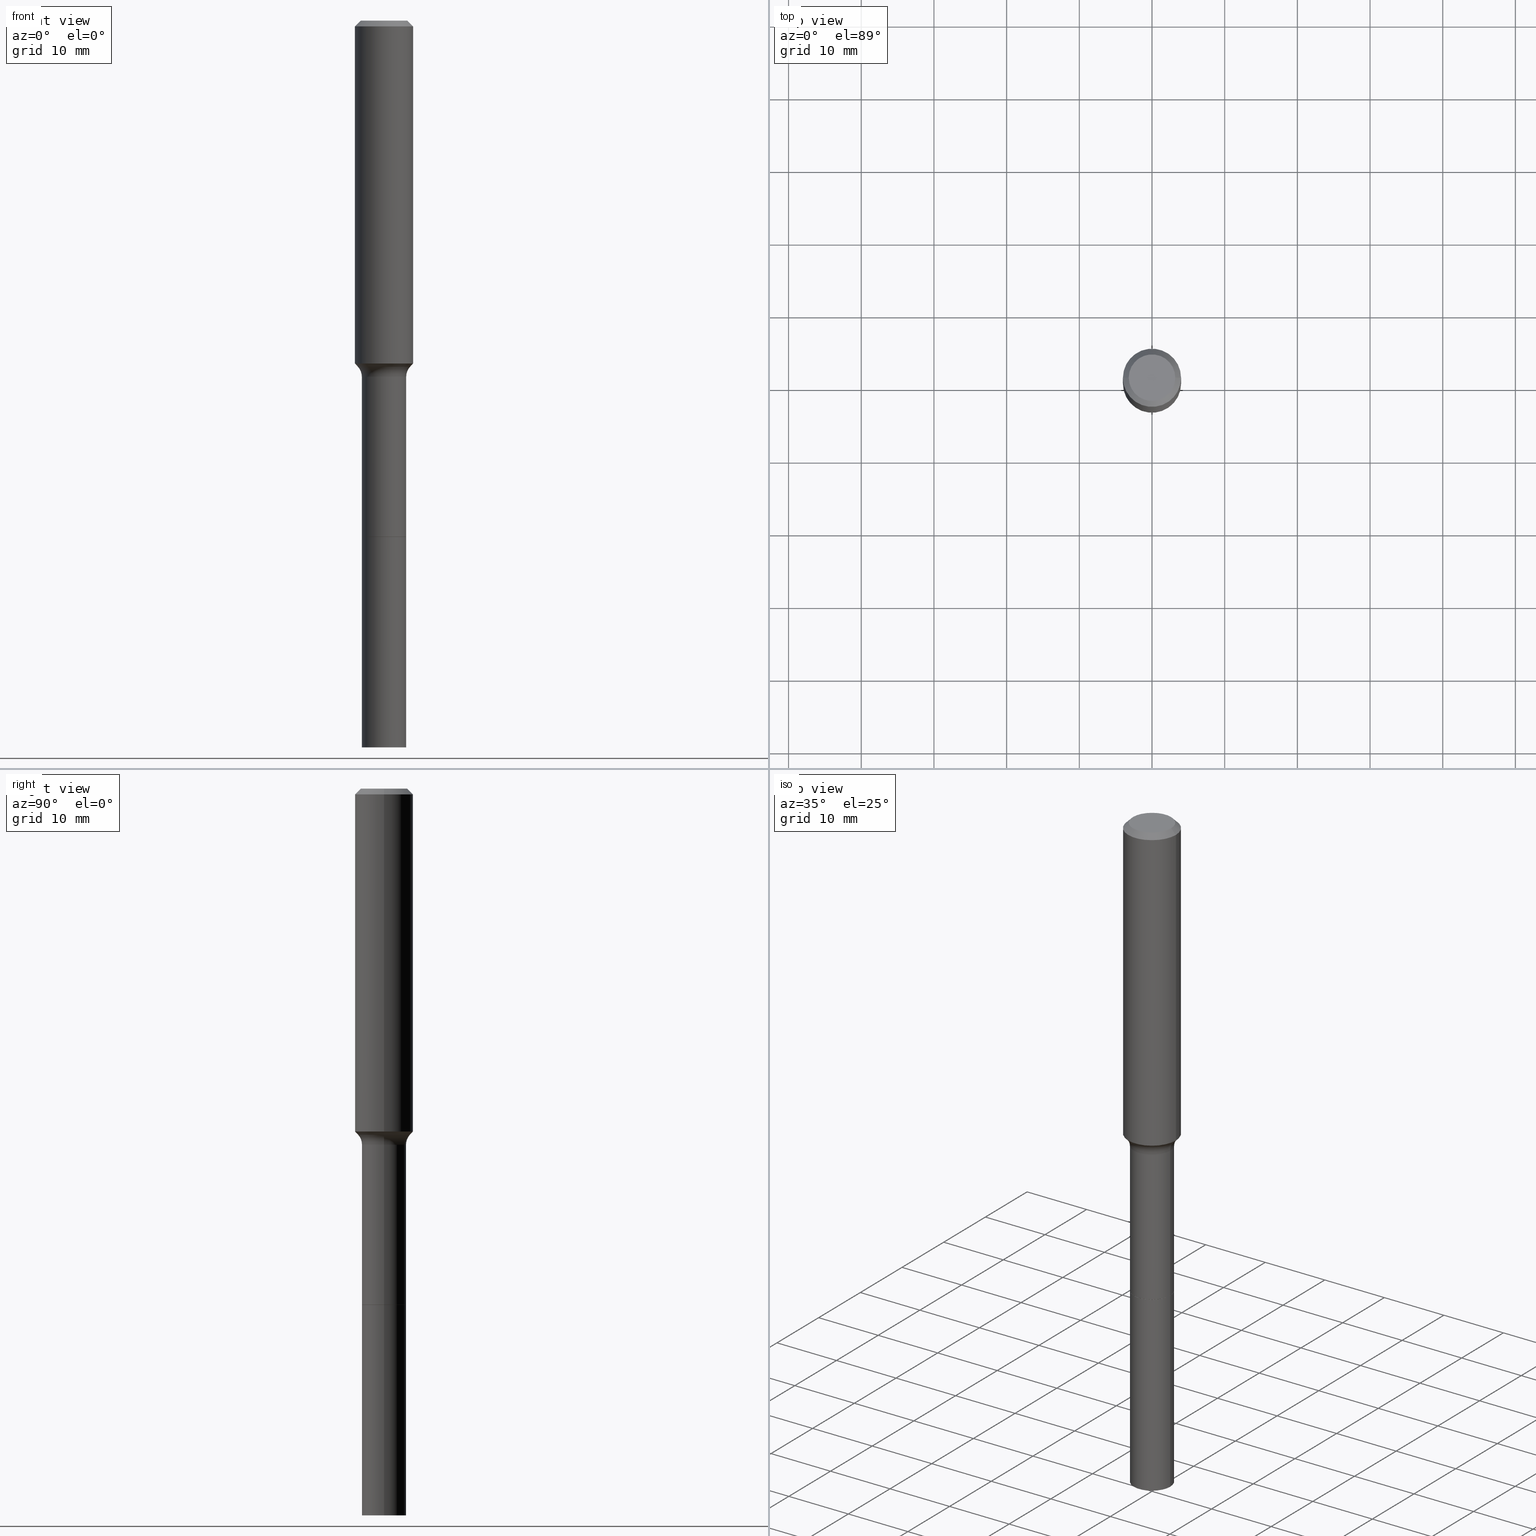
[diagram: canonical four-view strip — front | top / right | iso, engineering-drawing reading convention]
A machine part, canonical four-view strip (front | top / right | iso — engineering-drawing reading convention). The complete STEP part file that produces these views, byte-faithful:
ISO-10303-21;
HEADER;
FILE_DESCRIPTION (( 'STEP AP203' ),
    '1' );
FILE_NAME ('67847.STEP',
    '2025-04-01T15:31:27',
    ( '' ),
    ( '' ),
    'SwSTEP 2.0',
    'SolidWorks 2024',
    '' );
FILE_SCHEMA (( 'CONFIG_CONTROL_DESIGN' ));
ENDSEC;

DATA;
#1 = VERTEX_POINT ( 'NONE', #222 ) ;
#2 = EDGE_CURVE ( 'NONE', #437, #194, #307, .T. ) ;
#3 = VECTOR ( 'NONE', #514, 39.37007874015748143 ) ;
#4 = CARTESIAN_POINT ( 'NONE',  ( 6.835085313287456474E-29, -9.758690342066593069E-15, -2.794999999999999929 ) ) ;
#5 = ORIENTED_EDGE ( 'NONE', *, *, #94, .T. ) ;
#6 = UNCERTAINTY_MEASURE_WITH_UNIT (LENGTH_MEASURE( 1.000000000000000082E-05 ), #309, 'distance_accuracy_value', 'NONE');
#7 = CARTESIAN_POINT ( 'NONE',  ( 4.542166250519328115E-29, -6.485009606951724031E-15, -1.857380572195881374 ) ) ;
#8 = AXIS2_PLACEMENT_3D ( 'NONE', #330, #370, #167 ) ;
#9 = DIRECTION ( 'NONE',  ( -0.7071067811864509833, 7.493145998870005484E-15, 0.7071067811866440511 ) ) ;
#10 = FACE_OUTER_BOUND ( 'NONE', #125, .T. ) ;
#11 = FACE_OUTER_BOUND ( 'NONE', #122, .T. ) ;
#12 = CARTESIAN_POINT ( 'NONE',  ( 0.1200999999999999984, -1.458461584861558686E-14, -3.937000000000000277 ) ) ;
#13 = APPROVAL_PERSON_ORGANIZATION ( #506, #99, #231 ) ;
#14 = VERTEX_POINT ( 'NONE', #257 ) ;
#15 = ADVANCED_FACE ( 'NONE', ( #173 ), #373, .F. ) ;
#16 = COORDINATED_UNIVERSAL_TIME_OFFSET ( 5, 0, .BEHIND. ) ;
#17 = CARTESIAN_POINT ( 'NONE',  ( 6.833862578884363673E-29, -9.756944601397170777E-15, -2.794499999999999762 ) ) ;
#18 = FACE_OUTER_BOUND ( 'NONE', #283, .T. ) ;
#19 = APPROVAL ( #258, 'UNSPECIFIED' ) ;
#20 = CARTESIAN_POINT ( 'NONE',  ( -4.719860820353096954E-47, 6.738710358733626979E-33, 1.930043355456227940E-18 ) ) ;
#21 = DIRECTION ( 'NONE',  ( -2.445468806185136597E-29, 3.491481338843145583E-15, 1.000000000000000000 ) ) ;
#22 = DIRECTION ( 'NONE',  ( -2.445468806185136597E-29, 3.491481338843145583E-15, 1.000000000000000000 ) ) ;
#23 = AXIS2_PLACEMENT_3D ( 'NONE', #294, #456, #302 ) ;
#24 = DIRECTION ( 'NONE',  ( 1.000000000000000000, -6.982962677686265922E-15, 0.000000000000000000 ) ) ;
#25 = PERSON_AND_ORGANIZATION_ROLE ( 'design_owner' ) ;
#26 = EDGE_CURVE ( 'NONE', #340, #364, #407, .T. ) ;
#27 = CARTESIAN_POINT ( 'NONE',  ( 4.717309327131129576E-29, -6.735067502628428981E-15, -1.929000000000000270 ) ) ;
#28 = CALENDAR_DATE ( 2025, 1, 4 ) ;
#29 = VERTEX_POINT ( 'NONE', #136 ) ;
#30 = DIRECTION ( 'NONE',  ( -2.445468806185136597E-29, 3.491481338843145583E-15, 1.000000000000000000 ) ) ;
#31 = CALENDAR_DATE ( 2025, 1, 4 ) ;
#32 = TOROIDAL_SURFACE ( 'NONE', #323, 0.2000999999999998613, 0.08000000000000002942 ) ;
#33 = ORIENTED_EDGE ( 'NONE', *, *, #329, .F. ) ;
#34 = DIRECTION ( 'NONE',  ( 1.000000000000000000, -6.982962677686273810E-15, 0.000000000000000000 ) ) ;
#35 = LOCAL_TIME ( 11, 31, 27.00000000000000000, #193 ) ;
#36 = ADVANCED_FACE ( 'NONE', ( #183 ), #32, .F. ) ;
#37 = ORIENTED_EDGE ( 'NONE', *, *, #181, .T. ) ;
#38 = ORIENTED_EDGE ( 'NONE', *, *, #490, .F. ) ;
#39 = PRODUCT_DEFINITION_SHAPE ( 'NONE', 'NONE',  #197 ) ;
#40 = ORIENTED_EDGE ( 'NONE', *, *, #56, .T. ) ;
#41 = CIRCLE ( 'NONE', #59, 0.1195999999999999980 ) ;
#42 = AXIS2_PLACEMENT_3D ( 'NONE', #17, #497, #328 ) ;
#43 = AXIS2_PLACEMENT_3D ( 'NONE', #195, #357, #158 ) ;
#44 = FACE_OUTER_BOUND ( 'NONE', #266, .T. ) ;
#45 = ORIENTED_EDGE ( 'NONE', *, *, #372, .F. ) ;
#46 = EDGE_CURVE ( 'NONE', #364, #340, #212, .T. ) ;
#47 = AXIS2_PLACEMENT_3D ( 'NONE', #4, #89, #481 ) ;
#48 = DIRECTION ( 'NONE',  ( 1.000000000000000000, -6.982962677686265922E-15, 0.000000000000000000 ) ) ;
#49 = CARTESIAN_POINT ( 'NONE',  ( 4.717309327131129576E-29, -6.735067502628428981E-15, -1.929000000000000270 ) ) ;
#50 = ADVANCED_FACE ( 'NONE', ( #394 ), #518, .T. ) ;
#51 = AXIS2_PLACEMENT_3D ( 'NONE', #500, #133, #374 ) ;
#52 = FACE_OUTER_BOUND ( 'NONE', #318, .T. ) ;
#53 = CARTESIAN_POINT ( 'NONE',  ( 0.1195999999999999980, -1.059385267831786878E-14, -2.794999999999999929 ) ) ;
#54 = PERSON_AND_ORGANIZATION_ROLE ( 'classification_officer' ) ;
#55 = PLANE ( 'NONE',  #377 ) ;
#56 = EDGE_CURVE ( 'NONE', #487, #255, #41, .T. ) ;
#57 = ORIENTED_EDGE ( 'NONE', *, *, #2, .T. ) ;
#58 = DIRECTION ( 'NONE',  ( 1.000000000000000000, -6.982962677686265922E-15, 0.000000000000000000 ) ) ;
#59 = AXIS2_PLACEMENT_3D ( 'NONE', #109, #463, #347 ) ;
#60 = DIRECTION ( 'NONE',  ( 0.7071067811864509833, -2.468850131081245741E-15, 0.7071067811866440511 ) ) ;
#61 = CC_DESIGN_SECURITY_CLASSIFICATION ( #450, ( #363 ) ) ;
#62 = CIRCLE ( 'NONE', #228, 0.1415917038704659625 ) ;
#63 = CC_DESIGN_PERSON_AND_ORGANIZATION_ASSIGNMENT ( #308, #110, ( #363 ) ) ;
#64 = DIRECTION ( 'NONE',  ( -2.445468806185136597E-29, 3.491481338843145583E-15, 1.000000000000000000 ) ) ;
#65 = ADVANCED_FACE ( 'NONE', ( #141 ), #387, .T. ) ;
#66 = PLANE ( 'NONE',  #80 ) ;
#67 = EDGE_CURVE ( 'NONE', #1, #489, #214, .T. ) ;
#68 = DIRECTION ( 'NONE',  ( -2.445468806185136597E-29, 3.491481338843145583E-15, 1.000000000000000000 ) ) ;
#69 = CLOSED_SHELL ( 'NONE', ( #50, #169, #208, #65, #36, #430, #325, #15, #91, #333, #134, #485, #414, #152 ) ) ;
#70 = AXIS2_PLACEMENT_3D ( 'NONE', #20, #445, #279 ) ;
#71 = EDGE_LOOP ( 'NONE', ( #411, #400, #159, #448 ) ) ;
#72 = DIRECTION ( 'NONE',  ( 7.105427357601001859E-15, 1.000000000000000000, -3.491481338843145583E-15 ) ) ;
#73 = ORIENTED_EDGE ( 'NONE', *, *, #26, .F. ) ;
#74 = CYLINDRICAL_SURFACE ( 'NONE', #166, 0.1200999999999999984 ) ;
#75 = DATE_TIME_ROLE ( 'creation_date' ) ;
#76 = ORIENTED_EDGE ( 'NONE', *, *, #397, .T. ) ;
#77 = CARTESIAN_POINT ( 'NONE',  ( -0.1200999999999999984, -8.905328516418712067E-15, -2.794999999999999929 ) ) ;
#78 = ORIENTED_EDGE ( 'NONE', *, *, #79, .F. ) ;
#79 = EDGE_CURVE ( 'NONE', #29, #364, #101, .T. ) ;
#80 = AXIS2_PLACEMENT_3D ( 'NONE', #454, #90, #252 ) ;
#81 = ORIENTED_EDGE ( 'NONE', *, *, #376, .T. ) ;
#82 = AXIS2_PLACEMENT_3D ( 'NONE', #451, #30, #48 ) ;
#83 = ORIENTED_EDGE ( 'NONE', *, *, #249, .F. ) ;
#84 = CARTESIAN_POINT ( 'NONE',  ( 0.1575000000000001954, -7.584826228687311511E-15, -1.857380572195881374 ) ) ;
#85 = ORIENTED_EDGE ( 'NONE', *, *, #241, .F. ) ;
#86 = CIRCLE ( 'NONE', #331, 0.1260000000000000009 ) ;
#87 = MANIFOLD_SOLID_BREP ( 'Body-Move/Copy2[2]', #69 ) ;
#88 = CARTESIAN_POINT ( 'NONE',  ( 0.1195999999999999980, -1.059385267831786878E-14, -2.794999999999999929 ) ) ;
#89 = DIRECTION ( 'NONE',  ( -2.445468806185136597E-29, 3.491481338843145583E-15, 1.000000000000000000 ) ) ;
#90 = DIRECTION ( 'NONE',  ( 2.438088387897960049E-29, -3.491481338843145188E-15, -1.000000000000000000 ) ) ;
#91 = ADVANCED_FACE ( 'NONE', ( #18 ), #353, .T. ) ;
#92 = CYLINDRICAL_SURFACE ( 'NONE', #157, 0.1575000000000000844 ) ;
#93 = DESIGN_CONTEXT ( 'detailed design', #502, 'design' ) ;
#94 = EDGE_CURVE ( 'NONE', #1, #375, #114, .T. ) ;
#95 = FACE_OUTER_BOUND ( 'NONE', #271, .T. ) ;
#96 = ORIENTED_EDGE ( 'NONE', *, *, #503, .F. ) ;
#97 = CARTESIAN_POINT ( 'NONE',  ( 7.703226739483229599E-31, -1.099816621735597908E-16, -0.03150000000000020145 ) ) ;
#98 = DATE_AND_TIME ( #461, #132 ) ;
#99 = APPROVAL ( #386, 'UNSPECIFIED' ) ;
#100 = DIRECTION ( 'NONE',  ( 1.000000000000000000, -6.982962677686267499E-15, 4.876176775795936353E-29 ) ) ;
#101 = LINE ( 'NONE', #472, #147 ) ;
#102 = AXIS2_PLACEMENT_3D ( 'NONE', #97, #21, #58 ) ;
#103 = LINE ( 'NONE', #462, #227 ) ;
#104 = AXIS2_PLACEMENT_3D ( 'NONE', #138, #209, #168 ) ;
#105 = FACE_OUTER_BOUND ( 'NONE', #71, .T. ) ;
#106 = DATE_AND_TIME ( #31, #35 ) ;
#107 = DIRECTION ( 'NONE',  ( 1.000000000000000000, 0.000000000000000000, 0.000000000000000000 ) ) ;
#108 = VECTOR ( 'NONE', #128, 39.37007874015748143 ) ;
#109 = CARTESIAN_POINT ( 'NONE',  ( 6.835085313287456474E-29, -9.758690342066593069E-15, -2.794999999999999929 ) ) ;
#110 = PERSON_AND_ORGANIZATION_ROLE ( 'creator' ) ;
#111 = CC_DESIGN_PERSON_AND_ORGANIZATION_ASSIGNMENT ( #217, #379, ( #197 ) ) ;
#112 = DIRECTION ( 'NONE',  ( -2.445468806185136597E-29, 3.491481338843145583E-15, 1.000000000000000000 ) ) ;
#113 = DIRECTION ( 'NONE',  ( -0.6819983600625076914, 7.399397606724322864E-15, 0.7313537016191619111 ) ) ;
#114 = CIRCLE ( 'NONE', #131, 0.08000000000000002942 ) ;
#115 = VECTOR ( 'NONE', #176, 39.37007874015748143 ) ;
#116 = EDGE_LOOP ( 'NONE', ( #33, #40, #121, #199 ) ) ;
#117 = FACE_OUTER_BOUND ( 'NONE', #286, .T. ) ;
#118 = ORIENTED_EDGE ( 'NONE', *, *, #282, .T. ) ;
#119 = DIRECTION ( 'NONE',  ( 1.000000000000000000, -6.982962677686273810E-15, 0.000000000000000000 ) ) ;
#120 = CC_DESIGN_DATE_AND_TIME_ASSIGNMENT ( #464, #223, ( #450 ) ) ;
#121 = ORIENTED_EDGE ( 'NONE', *, *, #372, .T. ) ;
#122 = EDGE_LOOP ( 'NONE', ( #378, #118, #153, #38 ) ) ;
#123 = VERTEX_POINT ( 'NONE', #468 ) ;
#124 = DIRECTION ( 'NONE',  ( 1.000000000000000000, -6.982962677686263555E-15, 0.000000000000000000 ) ) ;
#125 = EDGE_LOOP ( 'NONE', ( #76, #404, #83, #179 ) ) ;
#126 = CARTESIAN_POINT ( 'NONE',  ( 6.835085313287456474E-29, -9.758690342066593069E-15, -2.794999999999999929 ) ) ;
#127 = CIRCLE ( 'NONE', #182, 0.1200999999999999984 ) ;
#128 = DIRECTION ( 'NONE',  ( -2.445468806185136877E-29, 3.491481338843145188E-15, 1.000000000000000000 ) ) ;
#129 = CARTESIAN_POINT ( 'NONE',  ( 0.1575000000000000011, -1.209798283909146741E-15, -0.03150000000000020145 ) ) ;
#130 = FACE_OUTER_BOUND ( 'NONE', #178, .T. ) ;
#131 = AXIS2_PLACEMENT_3D ( 'NONE', #433, #72, #504 ) ;
#132 = LOCAL_TIME ( 11, 31, 27.00000000000000000, #385 ) ;
#133 = DIRECTION ( 'NONE',  ( -2.445468806185136597E-29, 3.491481338843145583E-15, 1.000000000000000000 ) ) ;
#134 = ADVANCED_FACE ( 'NONE', ( #105 ), #432, .T. ) ;
#135 = LINE ( 'NONE', #254, #115 ) ;
#136 = CARTESIAN_POINT ( 'NONE',  ( -0.1260000000000000009, 9.348441284752484904E-16, 3.860086710906110326E-18 ) ) ;
#137 = CALENDAR_DATE ( 2025, 1, 4 ) ;
#138 = CARTESIAN_POINT ( 'NONE',  ( 0.000000000000000000, 0.000000000000000000, 0.000000000000000000 ) ) ;
#139 = DIRECTION ( 'NONE',  ( -2.445468806185136597E-29, 3.491481338843145583E-15, 1.000000000000000000 ) ) ;
#140 = DIRECTION ( 'NONE',  ( 2.445468806185136597E-29, -3.491481338843145583E-15, -1.000000000000000000 ) ) ;
#141 = FACE_OUTER_BOUND ( 'NONE', #234, .T. ) ;
#142 = DIRECTION ( 'NONE',  ( 0.000000000000000000, 0.000000000000000000, 1.000000000000000000 ) ) ;
#143 = CARTESIAN_POINT ( 'NONE',  ( 6.835085313287456474E-29, -9.758690342066593069E-15, -2.794999999999999929 ) ) ;
#144 = EDGE_CURVE ( 'NONE', #194, #229, #408, .T. ) ;
#145 = AXIS2_PLACEMENT_3D ( 'NONE', #507, #261, #429 ) ;
#146 = APPROVAL_DATE_TIME ( #350, #99 ) ;
#147 = VECTOR ( 'NONE', #381, 39.37007874015748143 ) ;
#148 = VECTOR ( 'NONE', #391, 39.37007874015748143 ) ;
#149 = ORIENTED_EDGE ( 'NONE', *, *, #164, .T. ) ;
#150 = CARTESIAN_POINT ( 'NONE',  ( 4.583884869898948123E-29, -6.544572738846040921E-15, -1.874440131195000303 ) ) ;
#151 = EDGE_CURVE ( 'NONE', #123, #360, #245, .T. ) ;
#152 = ADVANCED_FACE ( 'NONE', ( #235 ), #494, .T. ) ;
#153 = ORIENTED_EDGE ( 'NONE', *, *, #151, .T. ) ;
#154 = EDGE_CURVE ( 'NONE', #196, #229, #398, .T. ) ;
#155 = ORIENTED_EDGE ( 'NONE', *, *, #249, .T. ) ;
#156 = ORIENTED_EDGE ( 'NONE', *, *, #503, .T. ) ;
#157 = AXIS2_PLACEMENT_3D ( 'NONE', #493, #207, #100 ) ;
#158 = DIRECTION ( 'NONE',  ( 1.000000000000000000, -6.982962677686271444E-15, 0.000000000000000000 ) ) ;
#159 = ORIENTED_EDGE ( 'NONE', *, *, #79, .T. ) ;
#160 = CIRCLE ( 'NONE', #82, 0.1575000000000001954 ) ;
#161 = CARTESIAN_POINT ( 'NONE',  ( 0.000000000000000000, 0.000000000000000000, 0.000000000000000000 ) ) ;
#162 = DIRECTION ( 'NONE',  ( -2.445468806185136597E-29, 3.491481338843145583E-15, 1.000000000000000000 ) ) ;
#163 = APPROVAL_PERSON_ORGANIZATION ( #236, #337, #399 ) ;
#164 = EDGE_CURVE ( 'NONE', #29, #446, #359, .T. ) ;
#165 = PLANE ( 'NONE',  #486 ) ;
#166 = AXIS2_PLACEMENT_3D ( 'NONE', #315, #442, #34 ) ;
#167 = DIRECTION ( 'NONE',  ( 1.000000000000000000, -6.982962677686269077E-15, 0.000000000000000000 ) ) ;
#168 = DIRECTION ( 'NONE',  ( 1.000000000000000000, -6.982962677686266711E-15, 4.876176775795936353E-29 ) ) ;
#169 = ADVANCED_FACE ( 'NONE', ( #438 ), #418, .T. ) ;
#170 = ORGANIZATION ( 'UNSPECIFIED', 'UNSPECIFIED', '' ) ;
#171 = DIRECTION ( 'NONE',  ( 1.000000000000000000, -6.982962677686266711E-15, 4.876176775795936353E-29 ) ) ;
#172 = EDGE_LOOP ( 'NONE', ( #242, #190, #230, #460 ) ) ;
#173 = FACE_OUTER_BOUND ( 'NONE', #384, .T. ) ;
#174 = SECURITY_CLASSIFICATION_LEVEL ( 'unclassified' ) ;
#175 = DIRECTION ( 'NONE',  ( 1.000000000000000000, -6.982962677686265922E-15, 4.876281427513067258E-29 ) ) ;
#176 = DIRECTION ( 'NONE',  ( 0.7071067811865451302, -7.319954787623248157E-15, -0.7071067811865499042 ) ) ;
#177 = CIRCLE ( 'NONE', #382, 0.1195999999999999980 ) ;
#178 = EDGE_LOOP ( 'NONE', ( #515, #37, #81, #513 ) ) ;
#179 = ORIENTED_EDGE ( 'NONE', *, *, #151, .F. ) ;
#180 = COORDINATED_UNIVERSAL_TIME_OFFSET ( 5, 0, .BEHIND. ) ;
#181 = EDGE_CURVE ( 'NONE', #489, #240, #160, .T. ) ;
#182 = AXIS2_PLACEMENT_3D ( 'NONE', #465, #435, #259 ) ;
#183 = FACE_OUTER_BOUND ( 'NONE', #361, .T. ) ;
#184 = APPROVAL_DATE_TIME ( #106, #337 ) ;
#185 = CARTESIAN_POINT ( 'NONE',  ( -9.439721640706193907E-47, 1.347742071746725396E-32, 3.860086710912455880E-18 ) ) ;
#186 = CIRCLE ( 'NONE', #274, 0.1415917038704659625 ) ;
#187 = EDGE_CURVE ( 'NONE', #1, #517, #186, .T. ) ;
#188 = CARTESIAN_POINT ( 'NONE',  ( 0.1200999999999999984, -1.059734415965671336E-14, -2.794999999999999929 ) ) ;
#189 = LENGTH_MEASURE_WITH_UNIT ( LENGTH_MEASURE( 0.02539999999999999897 ), #431 );
#190 = ORIENTED_EDGE ( 'NONE', *, *, #154, .T. ) ;
#191 = CYLINDRICAL_SURFACE ( 'NONE', #47, 0.1200999999999999984 ) ;
#192 = CLOSED_SHELL ( 'NONE', ( #232, #479, #278, #287 ) ) ;
#193 = COORDINATED_UNIVERSAL_TIME_OFFSET ( 5, 0, .BEHIND. ) ;
#194 = VERTEX_POINT ( 'NONE', #452 ) ;
#195 = CARTESIAN_POINT ( 'NONE',  ( 6.833862578884363673E-29, -9.756944601397170777E-15, -2.794499999999999762 ) ) ;
#196 = VERTEX_POINT ( 'NONE', #412 ) ;
#197 = PRODUCT_DEFINITION ( 'UNKNOWN', '', #363, #93 ) ;
#198 = ORIENTED_EDGE ( 'NONE', *, *, #181, .F. ) ;
#199 = ORIENTED_EDGE ( 'NONE', *, *, #282, .F. ) ;
#200 = DIRECTION ( 'NONE',  ( -2.445468806185136597E-29, 3.491481338843145583E-15, 1.000000000000000000 ) ) ;
#201 = ORIENTED_EDGE ( 'NONE', *, *, #369, .T. ) ;
#202 = PERSON ( 'UNSPECIFIED', 'UNSPECIFIED', 'UNSPECIFIED', ('UNSPECIFIED'), ('UNSPECIFIED'), ('UNSPECIFIED') ) ;
#203 = CYLINDRICAL_SURFACE ( 'NONE', #233, 0.1575000000000000844 ) ;
#204 = CC_DESIGN_PERSON_AND_ORGANIZATION_ASSIGNMENT ( #341, #469, ( #363 ) ) ;
#205 = LINE ( 'NONE', #248, #348 ) ;
#206 = CIRCLE ( 'NONE', #23, 0.1200999999999999984 ) ;
#207 = DIRECTION ( 'NONE',  ( -2.445468806185136597E-29, 3.491481338843145583E-15, 1.000000000000000000 ) ) ;
#208 = ADVANCED_FACE ( 'NONE', ( #44 ), #203, .T. ) ;
#209 = DIRECTION ( 'NONE',  ( -2.445468806185136597E-29, 3.491481338843145583E-15, 1.000000000000000000 ) ) ;
#210 = COORDINATED_UNIVERSAL_TIME_OFFSET ( 5, 0, .BEHIND. ) ;
#211 = LINE ( 'NONE', #53, #239 ) ;
#212 = CIRCLE ( 'NONE', #102, 0.1575000000000000011 ) ;
#213 = ORIENTED_EDGE ( 'NONE', *, *, #26, .T. ) ;
#214 = LINE ( 'NONE', #474, #226 ) ;
#215 = APPROVAL_ROLE ( '' ) ;
#216 = APPROVAL_PERSON_ORGANIZATION ( #332, #19, #215 ) ;
#217 = PERSON_AND_ORGANIZATION ( #202, #170 ) ;
#218 = CARTESIAN_POINT ( 'NONE',  ( -0.1200999999999999152, -7.392644226364920454E-15, -1.929000000000000270 ) ) ;
#219 = ORIENTED_EDGE ( 'NONE', *, *, #187, .T. ) ;
#220 = DIRECTION ( 'NONE',  ( -2.445468806185136597E-29, 3.491481338843145583E-15, 1.000000000000000000 ) ) ;
#221 = AXIS2_PLACEMENT_3D ( 'NONE', #49, #447, #401 ) ;
#222 = CARTESIAN_POINT ( 'NONE',  ( -0.1415917038704661846, -5.538503172555490240E-15, -1.874440131195000303 ) ) ;
#223 = DATE_TIME_ROLE ( 'classification_date' ) ;
#224 = MECHANICAL_CONTEXT ( 'NONE', #392, 'mechanical' ) ;
#225 = CARTESIAN_POINT ( 'NONE',  ( 7.703226739483229599E-31, -1.099816621735597908E-16, -0.03150000000000020145 ) ) ;
#226 = VECTOR ( 'NONE', #113, 39.37007874015748143 ) ;
#227 = VECTOR ( 'NONE', #260, 39.37007874015748143 ) ;
#228 = AXIS2_PLACEMENT_3D ( 'NONE', #320, #488, #124 ) ;
#229 = VERTEX_POINT ( 'NONE', #511 ) ;
#230 = ORIENTED_EDGE ( 'NONE', *, *, #144, .F. ) ;
#231 = APPROVAL_ROLE ( '' ) ;
#232 = ADVANCED_FACE ( 'NONE', ( #413 ), #191, .T. ) ;
#233 = AXIS2_PLACEMENT_3D ( 'NONE', #161, #288, #285 ) ;
#234 = EDGE_LOOP ( 'NONE', ( #498, #403, #85, #351 ) ) ;
#235 = FACE_OUTER_BOUND ( 'NONE', #116, .T. ) ;
#236 = PERSON_AND_ORGANIZATION ( #202, #170 ) ;
#237 = EDGE_LOOP ( 'NONE', ( #366, #275, #443, #45 ) ) ;
#238 = DIRECTION ( 'NONE',  ( -2.445468806185136597E-29, 3.491481338843145583E-15, 1.000000000000000000 ) ) ;
#239 = VECTOR ( 'NONE', #60, 39.37007874015748143 ) ;
#240 = VERTEX_POINT ( 'NONE', #84 ) ;
#241 = EDGE_CURVE ( 'NONE', #240, #489, #439, .T. ) ;
#242 = ORIENTED_EDGE ( 'NONE', *, *, #306, .T. ) ;
#243 = EDGE_LOOP ( 'NONE', ( #316, #335 ) ) ;
#244 = EDGE_CURVE ( 'NONE', #255, #487, #177, .T. ) ;
#245 = LINE ( 'NONE', #311, #3 ) ;
#246 = ORIENTED_EDGE ( 'NONE', *, *, #67, .F. ) ;
#247 = AXIS2_PLACEMENT_3D ( 'NONE', #342, #142, #107 ) ;
#248 = CARTESIAN_POINT ( 'NONE',  ( -0.1200999999999999707, 8.533618256478801148E-16, -5.907641043396140543E-30 ) ) ;
#249 = EDGE_CURVE ( 'NONE', #360, #375, #482, .T. ) ;
#250 = AXIS2_PLACEMENT_3D ( 'NONE', #410, #367, #352 ) ;
#251 = CARTESIAN_POINT ( 'NONE',  ( -9.439721640706193907E-47, 1.347742071746725396E-32, 3.860086710912455880E-18 ) ) ;
#252 = DIRECTION ( 'NONE',  ( -1.000000000000000000, 6.982962677686265922E-15, -4.876176775795935793E-29 ) ) ;
#253 = CARTESIAN_POINT ( 'NONE',  ( 6.835085313287456474E-29, -9.758690342066593069E-15, -2.794999999999999929 ) ) ;
#254 = CARTESIAN_POINT ( 'NONE',  ( 0.1575000000000000011, -1.190510096822576026E-15, -0.03150000000000020145 ) ) ;
#255 = VERTEX_POINT ( 'NONE', #88 ) ;
#256 = DIRECTION ( 'NONE',  ( 2.438088387897960049E-29, -3.491481338843145188E-15, -1.000000000000000000 ) ) ;
#257 = CARTESIAN_POINT ( 'NONE',  ( -0.1201000000000000539, -7.392644226364918876E-15, -2.794499999999999762 ) ) ;
#258 = APPROVAL_STATUS ( 'not_yet_approved' ) ;
#259 = DIRECTION ( 'NONE',  ( 1.000000000000000000, -6.982962677686273810E-15, 0.000000000000000000 ) ) ;
#260 = DIRECTION ( 'NONE',  ( 0.6819983600625076914, -2.208861293262569677E-15, 0.7313537016191619111 ) ) ;
#261 = DIRECTION ( 'NONE',  ( -2.445468806185136597E-29, 3.491481338843145583E-15, 1.000000000000000000 ) ) ;
#262 = DIRECTION ( 'NONE',  ( 1.000000000000000000, -6.982962677686261977E-15, 0.000000000000000000 ) ) ;
#263 = DIRECTION ( 'NONE',  ( -1.000000000000000000, 6.982962677686265922E-15, 0.000000000000000000 ) ) ;
#264 = APPROVAL_DATE_TIME ( #98, #19 ) ;
#265 = CARTESIAN_POINT ( 'NONE',  ( -0.1575000000000000844, 1.119104808822158392E-15, -7.747322767151481189E-30 ) ) ;
#266 = EDGE_LOOP ( 'NONE', ( #281, #480, #73, #336 ) ) ;
#267 = PERSON_AND_ORGANIZATION ( #202, #170 ) ;
#268 = AXIS2_PLACEMENT_3D ( 'NONE', #427, #140, #263 ) ;
#269 = CARTESIAN_POINT ( 'NONE',  ( -0.1195999999999999980, -8.906232002923400186E-15, -2.794999999999999929 ) ) ;
#270 = EDGE_CURVE ( 'NONE', #14, #375, #205, .T. ) ;
#271 = EDGE_LOOP ( 'NONE', ( #393, #319 ) ) ;
#272 = DIRECTION ( 'NONE',  ( -2.445468806185136877E-29, 3.491481338843145188E-15, 1.000000000000000000 ) ) ;
#273 =( NAMED_UNIT ( * ) PLANE_ANGLE_UNIT ( ) SI_UNIT ( $, .RADIAN. ) );
#274 = AXIS2_PLACEMENT_3D ( 'NONE', #150, #368, #290 ) ;
#275 = ORIENTED_EDGE ( 'NONE', *, *, #329, .T. ) ;
#276 = DIRECTION ( 'NONE',  ( -2.445468806185136597E-29, 3.491481338843145583E-15, 1.000000000000000000 ) ) ;
#277 = ORIENTED_EDGE ( 'NONE', *, *, #284, .F. ) ;
#278 = ADVANCED_FACE ( 'NONE', ( #117 ), #74, .T. ) ;
#279 = DIRECTION ( 'NONE',  ( -1.000000000000000000, 6.982962677686265922E-15, -4.876176775795935793E-29 ) ) ;
#280 = CIRCLE ( 'NONE', #42, 0.1201000000000000401 ) ;
#281 = ORIENTED_EDGE ( 'NONE', *, *, #241, .T. ) ;
#282 = EDGE_CURVE ( 'NONE', #14, #123, #296, .T. ) ;
#283 = EDGE_LOOP ( 'NONE', ( #246, #219, #475, #198 ) ) ;
#284 = EDGE_CURVE ( 'NONE', #517, #1, #62, .T. ) ;
#285 = DIRECTION ( 'NONE',  ( 1.000000000000000000, -6.982962677686267499E-15, 4.876176775795936353E-29 ) ) ;
#286 = EDGE_LOOP ( 'NONE', ( #444, #406, #57, #441 ) ) ;
#287 = ADVANCED_FACE ( 'NONE', ( #495 ), #55, .F. ) ;
#288 = DIRECTION ( 'NONE',  ( -2.445468806185136597E-29, 3.491481338843145583E-15, 1.000000000000000000 ) ) ;
#289 = CC_DESIGN_APPROVAL ( #19, ( #450 ) ) ;
#290 = DIRECTION ( 'NONE',  ( 1.000000000000000000, -6.982962677686263555E-15, 0.000000000000000000 ) ) ;
#291 = CARTESIAN_POINT ( 'NONE',  ( 0.1260000000000000009, -1.027466422270894443E-15, 3.860086710919124220E-18 ) ) ;
#292 = CARTESIAN_POINT ( 'NONE',  ( 0.1200999999999999152, -7.573721320218547694E-15, -1.929000000000000270 ) ) ;
#293 = VECTOR ( 'NONE', #496, 39.37007874015748143 ) ;
#294 = CARTESIAN_POINT ( 'NONE',  ( 9.627810689950883669E-29, -1.374596203102546341E-14, -3.937000000000000277 ) ) ;
#295 = DIRECTION ( 'NONE',  ( 1.000000000000000000, -6.982962677686263555E-15, 0.000000000000000000 ) ) ;
#296 = CIRCLE ( 'NONE', #43, 0.1201000000000000401 ) ;
#297 = LINE ( 'NONE', #419, #409 ) ;
#298 = DIMENSIONAL_EXPONENTS ( 1.000000000000000000, 0.000000000000000000, 0.000000000000000000, 0.000000000000000000, 0.000000000000000000, 0.000000000000000000, 0.000000000000000000 ) ;
#299 = CARTESIAN_POINT ( 'NONE',  ( 6.835085313287456474E-29, -9.758690342066593069E-15, -2.794999999999999929 ) ) ;
#300 = CALENDAR_DATE ( 2025, 1, 4 ) ;
#301 = DATE_AND_TIME ( #137, #313 ) ;
#302 = DIRECTION ( 'NONE',  ( 1.000000000000000000, -6.982962677686273810E-15, 0.000000000000000000 ) ) ;
#303 = VECTOR ( 'NONE', #349, 39.37007874015748143 ) ;
#304 = DIRECTION ( 'NONE',  ( 1.000000000000000000, -6.982962677686263555E-15, 0.000000000000000000 ) ) ;
#305 = LOCAL_TIME ( 11, 31, 27.00000000000000000, #180 ) ;
#306 = EDGE_CURVE ( 'NONE', #437, #196, #206, .T. ) ;
#307 = LINE ( 'NONE', #188, #303 ) ;
#308 = PERSON_AND_ORGANIZATION ( #202, #170 ) ;
#309 =( CONVERSION_BASED_UNIT ( 'INCH', #189 ) LENGTH_UNIT ( ) NAMED_UNIT ( #298 ) );
#310 = CARTESIAN_POINT ( 'NONE',  ( 4.583884869898948123E-29, -6.544572738846040921E-15, -1.874440131195000303 ) ) ;
#311 = CARTESIAN_POINT ( 'NONE',  ( 0.1200999999999999707, -8.386538175901203898E-16, 5.856288307730917951E-30 ) ) ;
#312 = AXIS2_PLACEMENT_3D ( 'NONE', #299, #388, #343 ) ;
#313 = LOCAL_TIME ( 11, 31, 27.00000000000000000, #16 ) ;
#314 = ORIENTED_EDGE ( 'NONE', *, *, #405, .T. ) ;
#315 = CARTESIAN_POINT ( 'NONE',  ( 6.835085313287456474E-29, -9.758690342066593069E-15, -2.794999999999999929 ) ) ;
#316 = ORIENTED_EDGE ( 'NONE', *, *, #306, .F. ) ;
#317 = CC_DESIGN_PERSON_AND_ORGANIZATION_ASSIGNMENT ( #267, #54, ( #450 ) ) ;
#318 = EDGE_LOOP ( 'NONE', ( #149, #156 ) ) ;
#319 = ORIENTED_EDGE ( 'NONE', *, *, #56, .F. ) ;
#320 = CARTESIAN_POINT ( 'NONE',  ( 4.583884869898948123E-29, -6.544572738846040921E-15, -1.874440131195000303 ) ) ;
#321 = ORIENTED_EDGE ( 'NONE', *, *, #144, .T. ) ;
#322 = CARTESIAN_POINT ( 'NONE',  ( 6.835085313287456474E-29, -9.758690342066593069E-15, -2.794999999999999929 ) ) ;
#323 = AXIS2_PLACEMENT_3D ( 'NONE', #27, #68, #425 ) ;
#324 = DIRECTION ( 'NONE',  ( 1.000000000000000000, -6.982962677686265922E-15, 0.000000000000000000 ) ) ;
#325 = ADVANCED_FACE ( 'NONE', ( #11 ), #334, .T. ) ;
#326 = CYLINDRICAL_SURFACE ( 'NONE', #104, 0.1200999999999999707 ) ;
#327 = AXIS2_PLACEMENT_3D ( 'NONE', #251, #276, #476 ) ;
#328 = DIRECTION ( 'NONE',  ( 1.000000000000000000, -6.982962677686271444E-15, 0.000000000000000000 ) ) ;
#329 = EDGE_CURVE ( 'NONE', #487, #14, #297, .T. ) ;
#330 = CARTESIAN_POINT ( 'NONE',  ( 0.2000999999999998613, -8.132358334433449347E-15, -1.929000000000000270 ) ) ;
#331 = AXIS2_PLACEMENT_3D ( 'NONE', #185, #112, #175 ) ;
#332 = PERSON_AND_ORGANIZATION ( #202, #170 ) ;
#333 = ADVANCED_FACE ( 'NONE', ( #130 ), #92, .T. ) ;
#334 = CYLINDRICAL_SURFACE ( 'NONE', #355, 0.1200999999999999707 ) ;
#335 = ORIENTED_EDGE ( 'NONE', *, *, #508, .F. ) ;
#336 = ORIENTED_EDGE ( 'NONE', *, *, #376, .F. ) ;
#337 = APPROVAL ( #354, 'UNSPECIFIED' ) ;
#338 = AXIS2_PLACEMENT_3D ( 'NONE', #7, #162, #324 ) ;
#339 = DIRECTION ( 'NONE',  ( 1.000000000000000000, -6.982962677686265922E-15, 4.876176775795935793E-29 ) ) ;
#340 = VERTEX_POINT ( 'NONE', #129 ) ;
#341 = PERSON_AND_ORGANIZATION ( #202, #170 ) ;
#342 = CARTESIAN_POINT ( 'NONE',  ( 0.000000000000000000, 0.000000000000000000, 0.000000000000000000 ) ) ;
#343 = DIRECTION ( 'NONE',  ( 1.000000000000000000, -6.982962677686261977E-15, 0.000000000000000000 ) ) ;
#344 =( GEOMETRIC_REPRESENTATION_CONTEXT ( 3 ) GLOBAL_UNCERTAINTY_ASSIGNED_CONTEXT ( ( #6 ) ) GLOBAL_UNIT_ASSIGNED_CONTEXT ( ( #309, #273, #509 ) ) REPRESENTATION_CONTEXT ( 'NONE', 'WORKASPACE' ) );
#345 = CARTESIAN_POINT ( 'NONE',  ( 4.717309327131129576E-29, -6.735067502628428981E-15, -1.929000000000000270 ) ) ;
#346 = PRODUCT ( '67847', '67847', '', ( #224 ) ) ;
#347 = DIRECTION ( 'NONE',  ( 1.000000000000000000, -6.982962677686261977E-15, 0.000000000000000000 ) ) ;
#348 = VECTOR ( 'NONE', #272, 39.37007874015748143 ) ;
#349 = DIRECTION ( 'NONE',  ( -2.445468806185136877E-29, 3.491481338843145188E-15, 1.000000000000000000 ) ) ;
#350 = DATE_AND_TIME ( #28, #305 ) ;
#351 = ORIENTED_EDGE ( 'NONE', *, *, #467, .F. ) ;
#352 = DIRECTION ( 'NONE',  ( -1.000000000000000000, 6.982962677686265922E-15, 0.000000000000000000 ) ) ;
#353 = CONICAL_SURFACE ( 'NONE', #362, 0.1415917038704659625, 0.7504915783575742960 ) ;
#354 = APPROVAL_STATUS ( 'not_yet_approved' ) ;
#355 = AXIS2_PLACEMENT_3D ( 'NONE', #466, #220, #171 ) ;
#356 = ORIENTED_EDGE ( 'NONE', *, *, #369, .F. ) ;
#357 = DIRECTION ( 'NONE',  ( -2.445468806185136597E-29, 3.491481338843145583E-15, 1.000000000000000000 ) ) ;
#358 = PRODUCT_RELATED_PRODUCT_CATEGORY ( 'detail', '', ( #346 ) ) ;
#359 = CIRCLE ( 'NONE', #327, 0.1260000000000000009 ) ;
#360 = VERTEX_POINT ( 'NONE', #292 ) ;
#361 = EDGE_LOOP ( 'NONE', ( #420, #5, #510, #356 ) ) ;
#362 = AXIS2_PLACEMENT_3D ( 'NONE', #501, #139, #304 ) ;
#363 = PRODUCT_DEFINITION_FORMATION_WITH_SPECIFIED_SOURCE ( 'ANY', '', #346, .NOT_KNOWN. ) ;
#364 = VERTEX_POINT ( 'NONE', #422 ) ;
#365 = DIRECTION ( 'NONE',  ( 1.000000000000000000, -6.982962677686261977E-15, 0.000000000000000000 ) ) ;
#366 = ORIENTED_EDGE ( 'NONE', *, *, #244, .T. ) ;
#367 = DIRECTION ( 'NONE',  ( 2.445468806185136597E-29, -3.491481338843145583E-15, -1.000000000000000000 ) ) ;
#368 = DIRECTION ( 'NONE',  ( -2.445468806185136597E-29, 3.491481338843145583E-15, 1.000000000000000000 ) ) ;
#369 = EDGE_CURVE ( 'NONE', #517, #360, #458, .T. ) ;
#370 = DIRECTION ( 'NONE',  ( -6.982962677686266711E-15, -1.000000000000000000, 3.491481338843145583E-15 ) ) ;
#371 = DIRECTION ( 'NONE',  ( -2.438088387897960049E-29, 3.491481338843145188E-15, 1.000000000000000000 ) ) ;
#372 = EDGE_CURVE ( 'NONE', #255, #123, #211, .T. ) ;
#373 = TOROIDAL_SURFACE ( 'NONE', #145, 0.2000999999999998613, 0.08000000000000002942 ) ;
#374 = DIRECTION ( 'NONE',  ( 1.000000000000000000, -6.982962677686273810E-15, 0.000000000000000000 ) ) ;
#375 = VERTEX_POINT ( 'NONE', #218 ) ;
#376 = EDGE_CURVE ( 'NONE', #240, #340, #380, .T. ) ;
#377 = AXIS2_PLACEMENT_3D ( 'NONE', #253, #256, #417 ) ;
#378 = ORIENTED_EDGE ( 'NONE', *, *, #270, .F. ) ;
#379 = PERSON_AND_ORGANIZATION_ROLE ( 'creator' ) ;
#380 = LINE ( 'NONE', #459, #293 ) ;
#381 = DIRECTION ( 'NONE',  ( -0.7071067811865451302, 2.468850131082231817E-15, -0.7071067811865499042 ) ) ;
#382 = AXIS2_PLACEMENT_3D ( 'NONE', #322, #200, #365 ) ;
#383 = CARTESIAN_POINT ( 'NONE',  ( 0.1415917038704661846, -7.533302322443513157E-15, -1.874440131195000303 ) ) ;
#384 = EDGE_LOOP ( 'NONE', ( #484, #277, #201, #155 ) ) ;
#385 = COORDINATED_UNIVERSAL_TIME_OFFSET ( 5, 0, .BEHIND. ) ;
#386 = APPROVAL_STATUS ( 'not_yet_approved' ) ;
#387 = CONICAL_SURFACE ( 'NONE', #455, 0.1415917038704659625, 0.7504915783575742960 ) ;
#388 = DIRECTION ( 'NONE',  ( -2.445468806185136597E-29, 3.491481338843145583E-15, 1.000000000000000000 ) ) ;
#389 = CIRCLE ( 'NONE', #477, 0.1200999999999999152 ) ;
#390 = PLANE ( 'NONE',  #70 ) ;
#391 = DIRECTION ( 'NONE',  ( -2.445468806185136877E-29, 3.491481338843145188E-15, 1.000000000000000000 ) ) ;
#392 = APPLICATION_CONTEXT ( 'configuration controlled 3d designs of mechanical parts and assemblies' ) ;
#393 = ORIENTED_EDGE ( 'NONE', *, *, #244, .F. ) ;
#394 = FACE_OUTER_BOUND ( 'NONE', #237, .T. ) ;
#395 = APPLICATION_PROTOCOL_DEFINITION ( 'international standard', 'config_control_design', 1994, #502 ) ;
#396 = ORIENTED_EDGE ( 'NONE', *, *, #436, .T. ) ;
#397 = EDGE_CURVE ( 'NONE', #123, #14, #280, .T. ) ;
#398 = LINE ( 'NONE', #77, #108 ) ;
#399 = APPROVAL_ROLE ( '' ) ;
#400 = ORIENTED_EDGE ( 'NONE', *, *, #164, .F. ) ;
#401 = DIRECTION ( 'NONE',  ( 1.000000000000000000, -6.982962677686261977E-15, 0.000000000000000000 ) ) ;
#402 = LOCAL_TIME ( 11, 31, 27.00000000000000000, #210 ) ;
#403 = ORIENTED_EDGE ( 'NONE', *, *, #67, .T. ) ;
#404 = ORIENTED_EDGE ( 'NONE', *, *, #270, .T. ) ;
#405 = EDGE_CURVE ( 'NONE', #446, #340, #135, .T. ) ;
#406 = ORIENTED_EDGE ( 'NONE', *, *, #508, .T. ) ;
#407 = CIRCLE ( 'NONE', #449, 0.1575000000000000011 ) ;
#408 = CIRCLE ( 'NONE', #423, 0.1200999999999999984 ) ;
#409 = VECTOR ( 'NONE', #9, 39.37007874015748143 ) ;
#410 = CARTESIAN_POINT ( 'NONE',  ( 7.703226739483229599E-31, -1.099816621735597908E-16, -0.03150000000000020145 ) ) ;
#411 = ORIENTED_EDGE ( 'NONE', *, *, #405, .F. ) ;
#412 = CARTESIAN_POINT ( 'NONE',  ( -0.1200999999999999984, -1.089896436089814803E-14, -3.937000000000000277 ) ) ;
#413 = FACE_OUTER_BOUND ( 'NONE', #172, .T. ) ;
#414 = ADVANCED_FACE ( 'NONE', ( #95 ), #165, .F. ) ;
#415 = ADVANCED_BREP_SHAPE_REPRESENTATION ( '67847', ( #434, #87, #247 ), #344 ) ;
#416 = CARTESIAN_POINT ( 'NONE',  ( 6.835085313287456474E-29, -9.758690342066593069E-15, -2.794999999999999929 ) ) ;
#417 = DIRECTION ( 'NONE',  ( -1.000000000000000000, 6.982962677686265922E-15, -4.876176775795935793E-29 ) ) ;
#418 = CONICAL_SURFACE ( 'NONE', #250, 0.1575000000000000011, 0.7853981633974449483 ) ;
#419 = CARTESIAN_POINT ( 'NONE',  ( -0.1195999999999999980, -8.908881230097512176E-15, -2.794999999999999929 ) ) ;
#420 = ORIENTED_EDGE ( 'NONE', *, *, #187, .F. ) ;
#421 = EDGE_LOOP ( 'NONE', ( #96, #314, #213, #78 ) ) ;
#422 = CARTESIAN_POINT ( 'NONE',  ( -0.1575000000000000011, -2.178390825740482563E-15, -0.03150000000000020145 ) ) ;
#423 = AXIS2_PLACEMENT_3D ( 'NONE', #143, #491, #119 ) ;
#424 = CC_DESIGN_APPROVAL ( #337, ( #363 ) ) ;
#425 = DIRECTION ( 'NONE',  ( 1.000000000000000000, -6.982962677686268288E-15, 4.883557194083114022E-29 ) ) ;
#426 = FACE_OUTER_BOUND ( 'NONE', #243, .T. ) ;
#427 = CARTESIAN_POINT ( 'NONE',  ( 7.703226739483229599E-31, -1.099816621735597908E-16, -0.03150000000000020145 ) ) ;
#428 = LINE ( 'NONE', #265, #148 ) ;
#429 = DIRECTION ( 'NONE',  ( 1.000000000000000000, -6.982962677686268288E-15, 4.883557194083114022E-29 ) ) ;
#430 = ADVANCED_FACE ( 'NONE', ( #10 ), #326, .T. ) ;
#431 =( LENGTH_UNIT ( ) NAMED_UNIT ( * ) SI_UNIT ( $, .METRE. ) );
#432 = CONICAL_SURFACE ( 'NONE', #268, 0.1575000000000000011, 0.7853981633974449483 ) ;
#433 = CARTESIAN_POINT ( 'NONE',  ( -0.2000999999999998613, -5.313271488372468903E-15, -1.929000000000000270 ) ) ;
#434 = MANIFOLD_SOLID_BREP ( 'Body-Move/Copy2[1]', #192 ) ;
#435 = DIRECTION ( 'NONE',  ( -2.445468806185136597E-29, 3.491481338843145583E-15, 1.000000000000000000 ) ) ;
#436 = EDGE_CURVE ( 'NONE', #229, #194, #512, .T. ) ;
#437 = VERTEX_POINT ( 'NONE', #12 ) ;
#438 = FACE_OUTER_BOUND ( 'NONE', #421, .T. ) ;
#439 = CIRCLE ( 'NONE', #338, 0.1575000000000001954 ) ;
#440 = CC_DESIGN_DATE_AND_TIME_ASSIGNMENT ( #301, #75, ( #197 ) ) ;
#441 = ORIENTED_EDGE ( 'NONE', *, *, #436, .F. ) ;
#442 = DIRECTION ( 'NONE',  ( -2.445468806185136597E-29, 3.491481338843145583E-15, 1.000000000000000000 ) ) ;
#443 = ORIENTED_EDGE ( 'NONE', *, *, #397, .F. ) ;
#444 = ORIENTED_EDGE ( 'NONE', *, *, #154, .F. ) ;
#445 = DIRECTION ( 'NONE',  ( 2.438088387897960049E-29, -3.491481338843145188E-15, -1.000000000000000000 ) ) ;
#446 = VERTEX_POINT ( 'NONE', #291 ) ;
#447 = DIRECTION ( 'NONE',  ( -2.445468806185136597E-29, 3.491481338843145583E-15, 1.000000000000000000 ) ) ;
#448 = ORIENTED_EDGE ( 'NONE', *, *, #46, .T. ) ;
#449 = AXIS2_PLACEMENT_3D ( 'NONE', #225, #505, #24 ) ;
#450 = SECURITY_CLASSIFICATION ( '', '', #174 ) ;
#451 = CARTESIAN_POINT ( 'NONE',  ( 4.542166250519328115E-29, -6.485009606951724031E-15, -1.857380572195881374 ) ) ;
#452 = CARTESIAN_POINT ( 'NONE',  ( 0.1200999999999999984, -1.059734415965671336E-14, -2.794999999999999929 ) ) ;
#453 = AXIS2_PLACEMENT_3D ( 'NONE', #126, #238, #492 ) ;
#454 = CARTESIAN_POINT ( 'NONE',  ( 9.627810689950883669E-29, -1.374596203102546341E-14, -3.937000000000000277 ) ) ;
#455 = AXIS2_PLACEMENT_3D ( 'NONE', #310, #64, #295 ) ;
#456 = DIRECTION ( 'NONE',  ( -2.445468806185136597E-29, 3.491481338843145583E-15, 1.000000000000000000 ) ) ;
#457 = CC_DESIGN_APPROVAL ( #99, ( #197 ) ) ;
#458 = CIRCLE ( 'NONE', #8, 0.08000000000000002942 ) ;
#459 = CARTESIAN_POINT ( 'NONE',  ( 0.1575000000000000844, -1.099816621735587677E-15, 7.679978421878603638E-30 ) ) ;
#460 = ORIENTED_EDGE ( 'NONE', *, *, #2, .F. ) ;
#461 = CALENDAR_DATE ( 2025, 1, 4 ) ;
#462 = CARTESIAN_POINT ( 'NONE',  ( 0.1415917038704659625, -7.533302322443510002E-15, -1.874440131195000303 ) ) ;
#463 = DIRECTION ( 'NONE',  ( -2.445468806185136597E-29, 3.491481338843145583E-15, 1.000000000000000000 ) ) ;
#464 = DATE_AND_TIME ( #300, #402 ) ;
#465 = CARTESIAN_POINT ( 'NONE',  ( 9.627810689950883669E-29, -1.374596203102546341E-14, -3.937000000000000277 ) ) ;
#466 = CARTESIAN_POINT ( 'NONE',  ( 0.000000000000000000, 0.000000000000000000, 0.000000000000000000 ) ) ;
#467 = EDGE_CURVE ( 'NONE', #517, #240, #103, .T. ) ;
#468 = CARTESIAN_POINT ( 'NONE',  ( 0.1201000000000000401, -1.059559841898729107E-14, -2.794499999999999762 ) ) ;
#469 = PERSON_AND_ORGANIZATION_ROLE ( 'design_supplier' ) ;
#470 = APPLICATION_PROTOCOL_DEFINITION ( 'international standard', 'config_control_design', 1994, #392 ) ;
#471 = CC_DESIGN_PERSON_AND_ORGANIZATION_ASSIGNMENT ( #499, #25, ( #346 ) ) ;
#472 = CARTESIAN_POINT ( 'NONE',  ( -0.1575000000000000011, 9.898349595620272334E-16, -0.03150000000000020145 ) ) ;
#473 = SHAPE_DEFINITION_REPRESENTATION ( #39, #415 ) ;
#474 = CARTESIAN_POINT ( 'NONE',  ( -0.1415917038704659625, -5.538503172555492606E-15, -1.874440131195000303 ) ) ;
#475 = ORIENTED_EDGE ( 'NONE', *, *, #467, .T. ) ;
#476 = DIRECTION ( 'NONE',  ( 1.000000000000000000, -6.982962677686265922E-15, 4.876281427513067258E-29 ) ) ;
#477 = AXIS2_PLACEMENT_3D ( 'NONE', #345, #22, #262 ) ;
#478 = CARTESIAN_POINT ( 'NONE',  ( -0.1575000000000001954, -5.365904798129564850E-15, -1.857380572195881374 ) ) ;
#479 = ADVANCED_FACE ( 'NONE', ( #426 ), #66, .T. ) ;
#480 = ORIENTED_EDGE ( 'NONE', *, *, #516, .T. ) ;
#481 = DIRECTION ( 'NONE',  ( 1.000000000000000000, -6.982962677686273810E-15, 0.000000000000000000 ) ) ;
#482 = CIRCLE ( 'NONE', #221, 0.1200999999999999152 ) ;
#483 = EDGE_LOOP ( 'NONE', ( #321, #396 ) ) ;
#484 = ORIENTED_EDGE ( 'NONE', *, *, #94, .F. ) ;
#485 = ADVANCED_FACE ( 'NONE', ( #52 ), #390, .F. ) ;
#486 = AXIS2_PLACEMENT_3D ( 'NONE', #416, #371, #339 ) ;
#487 = VERTEX_POINT ( 'NONE', #269 ) ;
#488 = DIRECTION ( 'NONE',  ( -2.445468806185136597E-29, 3.491481338843145583E-15, 1.000000000000000000 ) ) ;
#489 = VERTEX_POINT ( 'NONE', #478 ) ;
#490 = EDGE_CURVE ( 'NONE', #375, #360, #389, .T. ) ;
#491 = DIRECTION ( 'NONE',  ( -2.445468806185136597E-29, 3.491481338843145583E-15, 1.000000000000000000 ) ) ;
#492 = DIRECTION ( 'NONE',  ( 1.000000000000000000, -6.982962677686261977E-15, 0.000000000000000000 ) ) ;
#493 = CARTESIAN_POINT ( 'NONE',  ( 0.000000000000000000, 0.000000000000000000, 0.000000000000000000 ) ) ;
#494 = CONICAL_SURFACE ( 'NONE', #453, 0.1195999999999999980, 0.7853981633973118326 ) ;
#495 = FACE_OUTER_BOUND ( 'NONE', #483, .T. ) ;
#496 = DIRECTION ( 'NONE',  ( -2.445468806185136877E-29, 3.491481338843145188E-15, 1.000000000000000000 ) ) ;
#497 = DIRECTION ( 'NONE',  ( -2.445468806185136597E-29, 3.491481338843145583E-15, 1.000000000000000000 ) ) ;
#498 = ORIENTED_EDGE ( 'NONE', *, *, #284, .T. ) ;
#499 = PERSON_AND_ORGANIZATION ( #202, #170 ) ;
#500 = CARTESIAN_POINT ( 'NONE',  ( 6.835085313287456474E-29, -9.758690342066593069E-15, -2.794999999999999929 ) ) ;
#501 = CARTESIAN_POINT ( 'NONE',  ( 4.583884869898948123E-29, -6.544572738846040921E-15, -1.874440131195000303 ) ) ;
#502 = APPLICATION_CONTEXT ( 'configuration controlled 3d designs of mechanical parts and assemblies' ) ;
#503 = EDGE_CURVE ( 'NONE', #446, #29, #86, .T. ) ;
#504 = DIRECTION ( 'NONE',  ( -1.000000000000000000, 7.105427357600995548E-15, 0.000000000000000000 ) ) ;
#505 = DIRECTION ( 'NONE',  ( -2.445468806185136597E-29, 3.491481338843145583E-15, 1.000000000000000000 ) ) ;
#506 = PERSON_AND_ORGANIZATION ( #202, #170 ) ;
#507 = CARTESIAN_POINT ( 'NONE',  ( 4.717309327131129576E-29, -6.735067502628428981E-15, -1.929000000000000270 ) ) ;
#508 = EDGE_CURVE ( 'NONE', #196, #437, #127, .T. ) ;
#509 =( NAMED_UNIT ( * ) SI_UNIT ( $, .STERADIAN. ) SOLID_ANGLE_UNIT ( ) );
#510 = ORIENTED_EDGE ( 'NONE', *, *, #490, .T. ) ;
#511 = CARTESIAN_POINT ( 'NONE',  ( -0.1200999999999999984, -1.089896436089814803E-14, -2.794999999999999929 ) ) ;
#512 = CIRCLE ( 'NONE', #51, 0.1200999999999999984 ) ;
#513 = ORIENTED_EDGE ( 'NONE', *, *, #46, .F. ) ;
#514 = DIRECTION ( 'NONE',  ( -2.445468806185136877E-29, 3.491481338843145188E-15, 1.000000000000000000 ) ) ;
#515 = ORIENTED_EDGE ( 'NONE', *, *, #516, .F. ) ;
#516 = EDGE_CURVE ( 'NONE', #489, #364, #428, .T. ) ;
#517 = VERTEX_POINT ( 'NONE', #383 ) ;
#518 = CONICAL_SURFACE ( 'NONE', #312, 0.1195999999999999980, 0.7853981633973118326 ) ;
ENDSEC;
END-ISO-10303-21;
